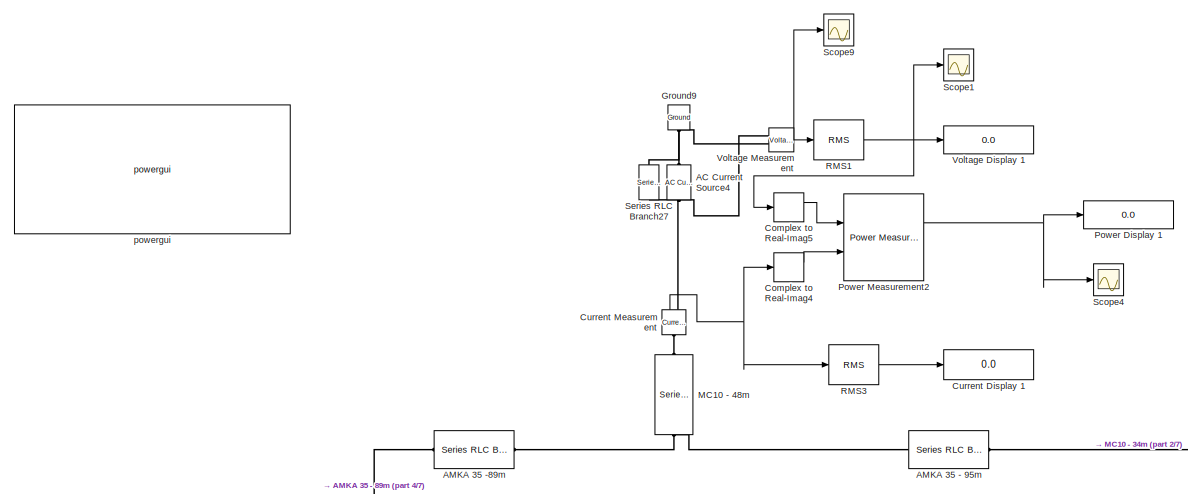
[diagram: root canvas - part 1/7, top center region]
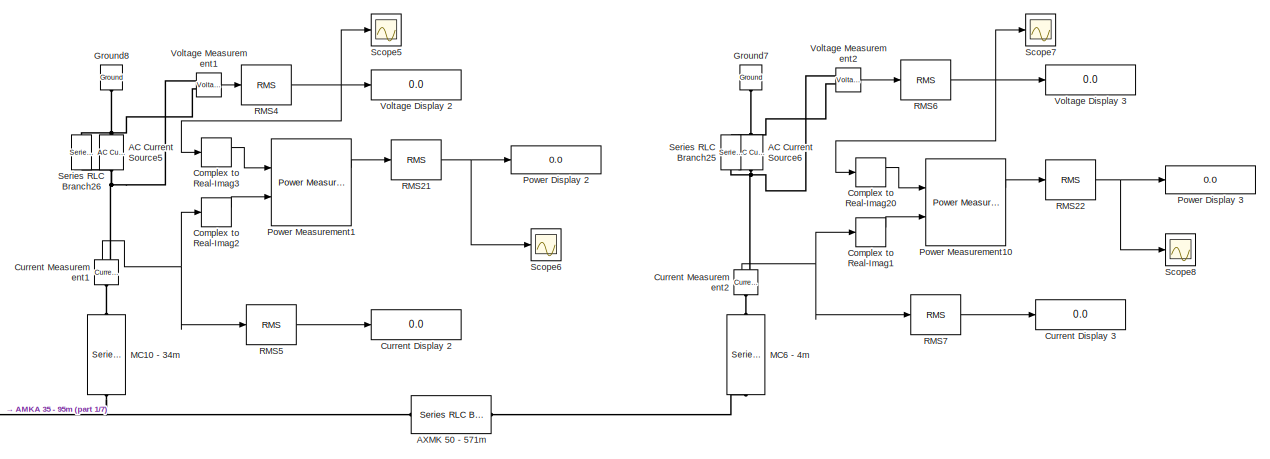
[diagram: root canvas - part 2/7, top right region]
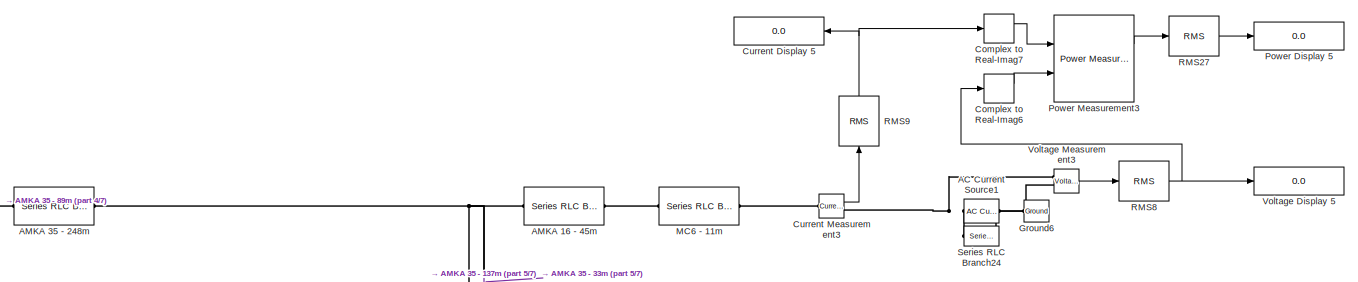
[diagram: root canvas - part 3/7, top center region]
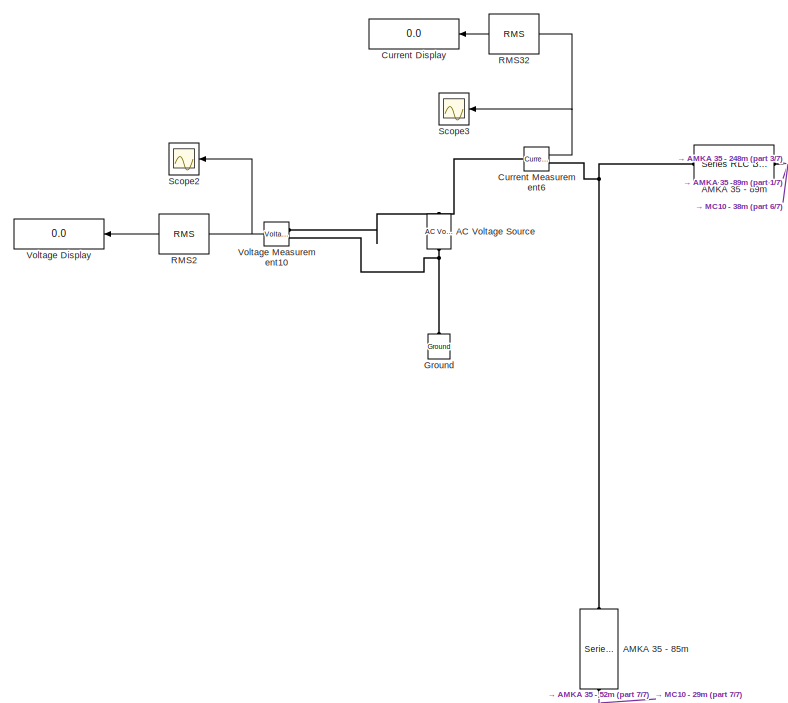
[diagram: root canvas - part 4/7, middle left region]
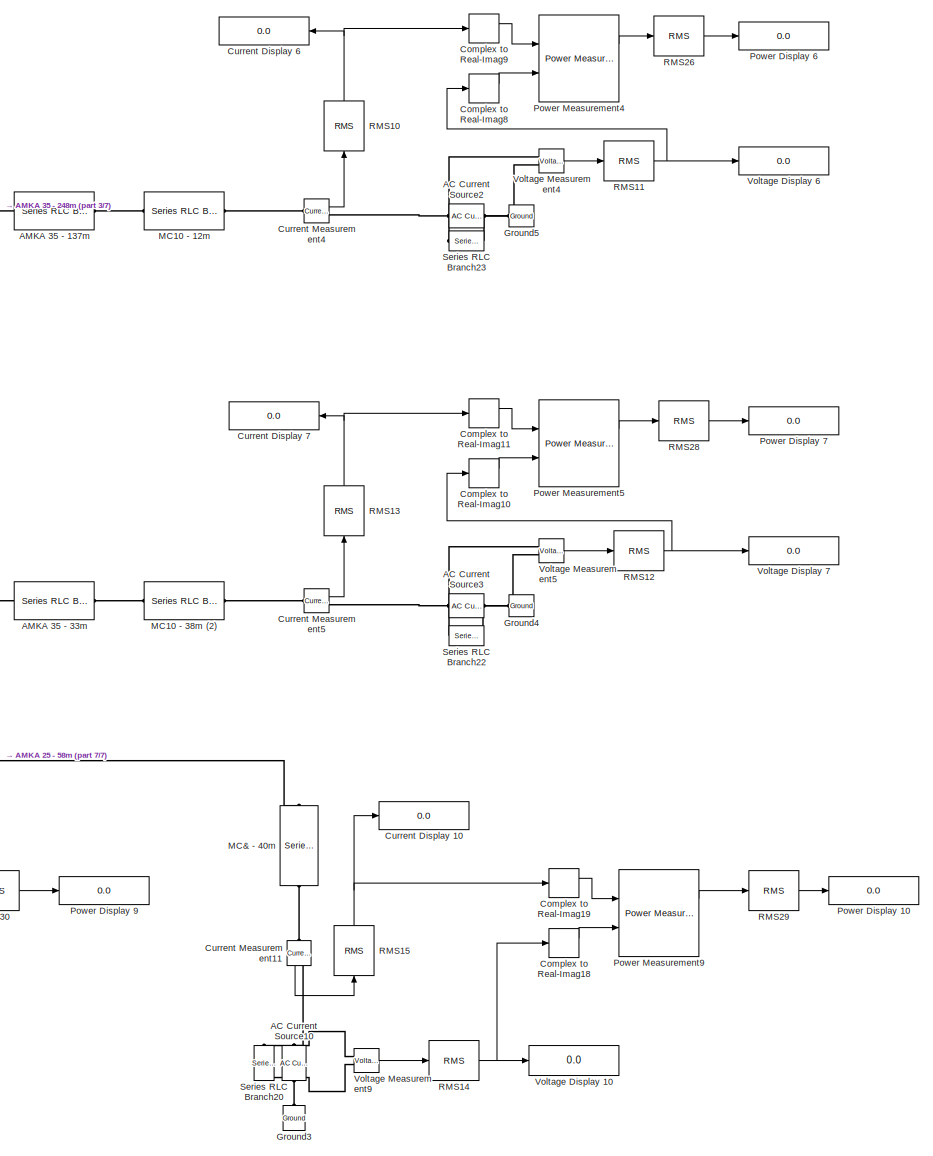
[diagram: root canvas - part 5/7, bottom right region]
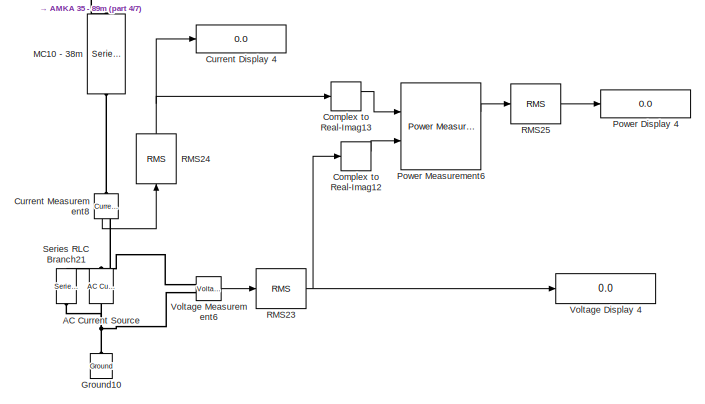
[diagram: root canvas - part 6/7, central region]
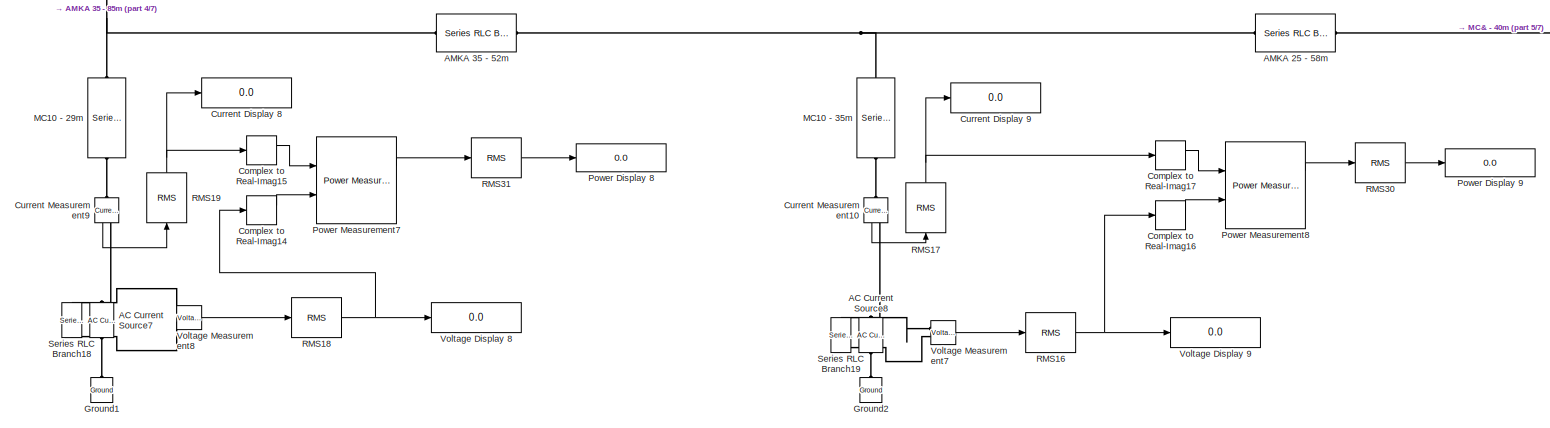
[diagram: root canvas - part 7/7, bottom center region]
MODEL slx_4e1f03ae6e0e
KIND model
CONFIG AbsTol = auto
CONFIG EnableMultiTasking = off
CONFIG FixedStep = auto
CONFIG MaxStep = auto
CONFIG MinStep = auto
CONFIG RelTol = 1e-3
CONFIG SampleTimeConstraint = Unconstrained
CONFIG Solver = VariableStepAuto
CONFIG SolverName = VariableStepAuto
CONFIG StartTime = 0.0
CONFIG StopTime = 2.0
BLOCK [Reference] AC Current Source  REF=powerlib/Electrical
Sources/AC Current Source
  NameLocation = left
  Ports = [0, 0, 0, 0, 0, 1, 1]
  SourceBlock = powerlib/Electrical\nSources/AC Current Source
  SourceProductBaseCode = PS
  SourceType = AC Current Source
BLOCK [Reference] AC Current Source1  REF=powerlib/Electrical
Sources/AC Current Source
  Ports = [0, 0, 0, 0, 0, 1, 1]
  SourceBlock = powerlib/Electrical\nSources/AC Current Source
  SourceProductBaseCode = PS
  SourceType = AC Current Source
BLOCK [Reference] AC Current Source10  REF=powerlib/Electrical
Sources/AC Current Source
  NameLocation = left
  Ports = [0, 0, 0, 0, 0, 1, 1]
  SourceBlock = powerlib/Electrical\nSources/AC Current Source
  SourceProductBaseCode = PS
  SourceType = AC Current Source
BLOCK [Reference] AC Current Source2  REF=powerlib/Electrical
Sources/AC Current Source
  Ports = [0, 0, 0, 0, 0, 1, 1]
  SourceBlock = powerlib/Electrical\nSources/AC Current Source
  SourceProductBaseCode = PS
  SourceType = AC Current Source
BLOCK [Reference] AC Current Source3  REF=powerlib/Electrical
Sources/AC Current Source
  Ports = [0, 0, 0, 0, 0, 1, 1]
  SourceBlock = powerlib/Electrical\nSources/AC Current Source
  SourceProductBaseCode = PS
  SourceType = AC Current Source
BLOCK [Reference] AC Current Source4  REF=powerlib/Electrical
Sources/AC Current Source
  NameLocation = right
  Ports = [0, 0, 0, 0, 0, 1, 1]
  SourceBlock = powerlib/Electrical\nSources/AC Current Source
  SourceProductBaseCode = PS
  SourceType = AC Current Source
BLOCK [Reference] AC Current Source5  REF=powerlib/Electrical
Sources/AC Current Source
  NameLocation = right
  Ports = [0, 0, 0, 0, 0, 1, 1]
  SourceBlock = powerlib/Electrical\nSources/AC Current Source
  SourceProductBaseCode = PS
  SourceType = AC Current Source
BLOCK [Reference] AC Current Source6  REF=powerlib/Electrical
Sources/AC Current Source
  NameLocation = right
  Ports = [0, 0, 0, 0, 0, 1, 1]
  SourceBlock = powerlib/Electrical\nSources/AC Current Source
  SourceProductBaseCode = PS
  SourceType = AC Current Source
BLOCK [Reference] AC Current Source7  REF=powerlib/Electrical
Sources/AC Current Source
  NameLocation = left
  Ports = [0, 0, 0, 0, 0, 1, 1]
  SourceBlock = powerlib/Electrical\nSources/AC Current Source
  SourceProductBaseCode = PS
  SourceType = AC Current Source
BLOCK [Reference] AC Current Source8  REF=powerlib/Electrical
Sources/AC Current Source
  NameLocation = left
  Ports = [0, 0, 0, 0, 0, 1, 1]
  SourceBlock = powerlib/Electrical\nSources/AC Current Source
  SourceProductBaseCode = PS
  SourceType = AC Current Source
BLOCK [Reference] AC Voltage Source  REF=powerlib/Electrical
Sources/AC Voltage Source
  NameLocation = right
  Ports = [0, 0, 0, 0, 0, 1, 1]
  SourceBlock = powerlib/Electrical\nSources/AC Voltage Source
  SourceProductBaseCode = PS
  SourceType = AC Voltage Source
BLOCK [Reference] AMKA 16 - 45m  REF=powerlib/Elements/Series RLC Branch
  Ports = [0, 0, 0, 0, 0, 1, 1]
  SourceBlock = powerlib/Elements/Series RLC Branch
  SourceProductBaseCode = PS
  SourceType = Series RLC Branch
BLOCK [Reference] AMKA 25 - 58m  REF=powerlib/Elements/Series RLC Branch
  Ports = [0, 0, 0, 0, 0, 1, 1]
  SourceBlock = powerlib/Elements/Series RLC Branch
  SourceProductBaseCode = PS
  SourceType = Series RLC Branch
BLOCK [Reference] AMKA 35 - 137m  REF=powerlib/Elements/Series RLC Branch
  Ports = [0, 0, 0, 0, 0, 1, 1]
  SourceBlock = powerlib/Elements/Series RLC Branch
  SourceProductBaseCode = PS
  SourceType = Series RLC Branch
BLOCK [Reference] AMKA 35 - 248m  REF=powerlib/Elements/Series RLC Branch
  Ports = [0, 0, 0, 0, 0, 1, 1]
  SourceBlock = powerlib/Elements/Series RLC Branch
  SourceProductBaseCode = PS
  SourceType = Series RLC Branch
BLOCK [Reference] AMKA 35 - 33m  REF=powerlib/Elements/Series RLC Branch
  Ports = [0, 0, 0, 0, 0, 1, 1]
  SourceBlock = powerlib/Elements/Series RLC Branch
  SourceProductBaseCode = PS
  SourceType = Series RLC Branch
BLOCK [Reference] AMKA 35 - 52m  REF=powerlib/Elements/Series RLC Branch
  Ports = [0, 0, 0, 0, 0, 1, 1]
  SourceBlock = powerlib/Elements/Series RLC Branch
  SourceProductBaseCode = PS
  SourceType = Series RLC Branch
BLOCK [Reference] AMKA 35 - 85m  REF=powerlib/Elements/Series RLC Branch
  NameLocation = left
  Ports = [0, 0, 0, 0, 0, 1, 1]
  SourceBlock = powerlib/Elements/Series RLC Branch
  SourceProductBaseCode = PS
  SourceType = Series RLC Branch
BLOCK [Reference] AMKA 35 - 89m  REF=powerlib/Elements/Series RLC Branch
  Ports = [0, 0, 0, 0, 0, 1, 1]
  SourceBlock = powerlib/Elements/Series RLC Branch
  SourceProductBaseCode = PS
  SourceType = Series RLC Branch
BLOCK [Reference] AMKA 35 - 95m  REF=powerlib/Elements/Series RLC Branch
  Ports = [0, 0, 0, 0, 0, 1, 1]
  SourceBlock = powerlib/Elements/Series RLC Branch
  SourceProductBaseCode = PS
  SourceType = Series RLC Branch
BLOCK [Reference] AMKA 35 -89m  REF=powerlib/Elements/Series RLC Branch
  Ports = [0, 0, 0, 0, 0, 1, 1]
  SourceBlock = powerlib/Elements/Series RLC Branch
  SourceProductBaseCode = PS
  SourceType = Series RLC Branch
BLOCK [Reference] AXMK 50 - 571m  REF=powerlib/Elements/Series RLC Branch
  Ports = [0, 0, 0, 0, 0, 1, 1]
  SourceBlock = powerlib/Elements/Series RLC Branch
  SourceProductBaseCode = PS
  SourceType = Series RLC Branch
BLOCK [ComplexToRealImag] Complex to Real-Imag1
  Ports = [1, 2]
BLOCK [ComplexToRealImag] Complex to Real-Imag10
  Ports = [1, 2]
BLOCK [ComplexToRealImag] Complex to Real-Imag11
  Ports = [1, 2]
BLOCK [ComplexToRealImag] Complex to Real-Imag12
  Ports = [1, 2]
BLOCK [ComplexToRealImag] Complex to Real-Imag13
  Ports = [1, 2]
BLOCK [ComplexToRealImag] Complex to Real-Imag14
  Ports = [1, 2]
BLOCK [ComplexToRealImag] Complex to Real-Imag15
  Ports = [1, 2]
BLOCK [ComplexToRealImag] Complex to Real-Imag16
  Ports = [1, 2]
BLOCK [ComplexToRealImag] Complex to Real-Imag17
  Ports = [1, 2]
BLOCK [ComplexToRealImag] Complex to Real-Imag18
  Ports = [1, 2]
BLOCK [ComplexToRealImag] Complex to Real-Imag19
  Ports = [1, 2]
BLOCK [ComplexToRealImag] Complex to Real-Imag2
  Ports = [1, 2]
BLOCK [ComplexToRealImag] Complex to Real-Imag20
  Ports = [1, 2]
BLOCK [ComplexToRealImag] Complex to Real-Imag3
  Ports = [1, 2]
BLOCK [ComplexToRealImag] Complex to Real-Imag4
  Ports = [1, 2]
BLOCK [ComplexToRealImag] Complex to Real-Imag5
  Ports = [1, 2]
BLOCK [ComplexToRealImag] Complex to Real-Imag6
  Ports = [1, 2]
BLOCK [ComplexToRealImag] Complex to Real-Imag7
  Ports = [1, 2]
BLOCK [ComplexToRealImag] Complex to Real-Imag8
  Ports = [1, 2]
BLOCK [ComplexToRealImag] Complex to Real-Imag9
  Ports = [1, 2]
BLOCK [Display] Current Display
  Decimation = 1
  NameLocation = top
  Ports = [1]
BLOCK [Display] Current Display 1
  Decimation = 1
  Ports = [1]
BLOCK [Display] Current Display 10
  Decimation = 1
  Ports = [1]
BLOCK [Display] Current Display 2
  Decimation = 1
  Ports = [1]
BLOCK [Display] Current Display 3
  Decimation = 1
  Ports = [1]
BLOCK [Display] Current Display 4
  Decimation = 1
  Ports = [1]
BLOCK [Display] Current Display 5
  Decimation = 1
  NameLocation = top
  Ports = [1]
BLOCK [Display] Current Display 6
  Decimation = 1
  NameLocation = top
  Ports = [1]
BLOCK [Display] Current Display 7
  Decimation = 1
  NameLocation = top
  Ports = [1]
BLOCK [Display] Current Display 8
  Decimation = 1
  Ports = [1]
BLOCK [Display] Current Display 9
  Decimation = 1
  Ports = [1]
BLOCK [Reference] Current Measurement  REF=powerlib/Measurements/Current Measurement
  NameLocation = right
  Ports = [0, 1, 0, 0, 0, 1, 1]
  SourceBlock = powerlib/Measurements/Current Measurement
  SourceProductBaseCode = PS
  SourceType = Current Measurement
  UserDataPersistent = on
BLOCK [Reference] Current Measurement1  REF=powerlib/Measurements/Current Measurement
  NameLocation = right
  Ports = [0, 1, 0, 0, 0, 1, 1]
  SourceBlock = powerlib/Measurements/Current Measurement
  SourceProductBaseCode = PS
  SourceType = Current Measurement
  UserDataPersistent = on
BLOCK [Reference] Current Measurement10  REF=powerlib/Measurements/Current Measurement
  NameLocation = left
  Ports = [0, 1, 0, 0, 0, 1, 1]
  SourceBlock = powerlib/Measurements/Current Measurement
  SourceProductBaseCode = PS
  SourceType = Current Measurement
  UserDataPersistent = on
BLOCK [Reference] Current Measurement11  REF=powerlib/Measurements/Current Measurement
  NameLocation = left
  Ports = [0, 1, 0, 0, 0, 1, 1]
  SourceBlock = powerlib/Measurements/Current Measurement
  SourceProductBaseCode = PS
  SourceType = Current Measurement
  UserDataPersistent = on
BLOCK [Reference] Current Measurement2  REF=powerlib/Measurements/Current Measurement
  NameLocation = right
  Ports = [0, 1, 0, 0, 0, 1, 1]
  SourceBlock = powerlib/Measurements/Current Measurement
  SourceProductBaseCode = PS
  SourceType = Current Measurement
  UserDataPersistent = on
BLOCK [Reference] Current Measurement3  REF=powerlib/Measurements/Current Measurement
  Ports = [0, 1, 0, 0, 0, 1, 1]
  SourceBlock = powerlib/Measurements/Current Measurement
  SourceProductBaseCode = PS
  SourceType = Current Measurement
  UserDataPersistent = on
BLOCK [Reference] Current Measurement4  REF=powerlib/Measurements/Current Measurement
  Ports = [0, 1, 0, 0, 0, 1, 1]
  SourceBlock = powerlib/Measurements/Current Measurement
  SourceProductBaseCode = PS
  SourceType = Current Measurement
  UserDataPersistent = on
BLOCK [Reference] Current Measurement5  REF=powerlib/Measurements/Current Measurement
  Ports = [0, 1, 0, 0, 0, 1, 1]
  SourceBlock = powerlib/Measurements/Current Measurement
  SourceProductBaseCode = PS
  SourceType = Current Measurement
  UserDataPersistent = on
BLOCK [Reference] Current Measurement6  REF=powerlib/Measurements/Current Measurement
  Ports = [0, 1, 0, 0, 0, 1, 1]
  SourceBlock = powerlib/Measurements/Current Measurement
  SourceProductBaseCode = PS
  SourceType = Current Measurement
  UserDataPersistent = on
BLOCK [Reference] Current Measurement8  REF=powerlib/Measurements/Current Measurement
  NameLocation = left
  Ports = [0, 1, 0, 0, 0, 1, 1]
  SourceBlock = powerlib/Measurements/Current Measurement
  SourceProductBaseCode = PS
  SourceType = Current Measurement
  UserDataPersistent = on
BLOCK [Reference] Current Measurement9  REF=powerlib/Measurements/Current Measurement
  NameLocation = left
  Ports = [0, 1, 0, 0, 0, 1, 1]
  SourceBlock = powerlib/Measurements/Current Measurement
  SourceProductBaseCode = PS
  SourceType = Current Measurement
  UserDataPersistent = on
BLOCK [Reference] Ground  REF=powerlib/Elements/Ground
  NameLocation = right
  Ports = [0, 0, 0, 0, 0, 1]
  SourceBlock = powerlib/Elements/Ground
  SourceProductBaseCode = PS
  SourceType = Ground
BLOCK [Reference] Ground1  REF=powerlib/Elements/Ground
  NameLocation = right
  Ports = [0, 0, 0, 0, 0, 1]
  SourceBlock = powerlib/Elements/Ground
  SourceProductBaseCode = PS
  SourceType = Ground
BLOCK [Reference] Ground10  REF=powerlib/Elements/Ground
  NameLocation = right
  Ports = [0, 0, 0, 0, 0, 1]
  SourceBlock = powerlib/Elements/Ground
  SourceProductBaseCode = PS
  SourceType = Ground
BLOCK [Reference] Ground2  REF=powerlib/Elements/Ground
  NameLocation = right
  Ports = [0, 0, 0, 0, 0, 1]
  SourceBlock = powerlib/Elements/Ground
  SourceProductBaseCode = PS
  SourceType = Ground
BLOCK [Reference] Ground3  REF=powerlib/Elements/Ground
  NameLocation = right
  Ports = [0, 0, 0, 0, 0, 1]
  SourceBlock = powerlib/Elements/Ground
  SourceProductBaseCode = PS
  SourceType = Ground
BLOCK [Reference] Ground4  REF=powerlib/Elements/Ground
  NameLocation = top
  Ports = [0, 0, 0, 0, 0, 1]
  SourceBlock = powerlib/Elements/Ground
  SourceProductBaseCode = PS
  SourceType = Ground
BLOCK [Reference] Ground5  REF=powerlib/Elements/Ground
  NameLocation = top
  Ports = [0, 0, 0, 0, 0, 1]
  SourceBlock = powerlib/Elements/Ground
  SourceProductBaseCode = PS
  SourceType = Ground
BLOCK [Reference] Ground6  REF=powerlib/Elements/Ground
  NameLocation = top
  Ports = [0, 0, 0, 0, 0, 1]
  SourceBlock = powerlib/Elements/Ground
  SourceProductBaseCode = PS
  SourceType = Ground
BLOCK [Reference] Ground7  REF=powerlib/Elements/Ground
  NameLocation = left
  Ports = [0, 0, 0, 0, 0, 1]
  SourceBlock = powerlib/Elements/Ground
  SourceProductBaseCode = PS
  SourceType = Ground
BLOCK [Reference] Ground8  REF=powerlib/Elements/Ground
  NameLocation = left
  Ports = [0, 0, 0, 0, 0, 1]
  SourceBlock = powerlib/Elements/Ground
  SourceProductBaseCode = PS
  SourceType = Ground
BLOCK [Reference] Ground9  REF=powerlib/Elements/Ground
  NameLocation = left
  Ports = [0, 0, 0, 0, 0, 1]
  SourceBlock = powerlib/Elements/Ground
  SourceProductBaseCode = PS
  SourceType = Ground
BLOCK [Reference] MC& - 40m  REF=powerlib/Elements/Series RLC Branch
  NameLocation = left
  Ports = [0, 0, 0, 0, 0, 1, 1]
  SourceBlock = powerlib/Elements/Series RLC Branch
  SourceProductBaseCode = PS
  SourceType = Series RLC Branch
BLOCK [Reference] MC10 - 12m  REF=powerlib/Elements/Series RLC Branch
  Ports = [0, 0, 0, 0, 0, 1, 1]
  SourceBlock = powerlib/Elements/Series RLC Branch
  SourceProductBaseCode = PS
  SourceType = Series RLC Branch
BLOCK [Reference] MC10 - 29m  REF=powerlib/Elements/Series RLC Branch
  NameLocation = left
  Ports = [0, 0, 0, 0, 0, 1, 1]
  SourceBlock = powerlib/Elements/Series RLC Branch
  SourceProductBaseCode = PS
  SourceType = Series RLC Branch
BLOCK [Reference] MC10 - 34m  REF=powerlib/Elements/Series RLC Branch
  NameLocation = right
  Ports = [0, 0, 0, 0, 0, 1, 1]
  SourceBlock = powerlib/Elements/Series RLC Branch
  SourceProductBaseCode = PS
  SourceType = Series RLC Branch
BLOCK [Reference] MC10 - 35m  REF=powerlib/Elements/Series RLC Branch
  NameLocation = left
  Ports = [0, 0, 0, 0, 0, 1, 1]
  SourceBlock = powerlib/Elements/Series RLC Branch
  SourceProductBaseCode = PS
  SourceType = Series RLC Branch
BLOCK [Reference] MC10 - 38m  REF=powerlib/Elements/Series RLC Branch
  NameLocation = left
  Ports = [0, 0, 0, 0, 0, 1, 1]
  SourceBlock = powerlib/Elements/Series RLC Branch
  SourceProductBaseCode = PS
  SourceType = Series RLC Branch
BLOCK [Reference] MC10 - 38m (2)   REF=powerlib/Elements/Series RLC Branch
  Ports = [0, 0, 0, 0, 0, 1, 1]
  SourceBlock = powerlib/Elements/Series RLC Branch
  SourceProductBaseCode = PS
  SourceType = Series RLC Branch
BLOCK [Reference] MC10 - 48m  REF=powerlib/Elements/Series RLC Branch
  NameLocation = right
  Ports = [0, 0, 0, 0, 0, 1, 1]
  SourceBlock = powerlib/Elements/Series RLC Branch
  SourceProductBaseCode = PS
  SourceType = Series RLC Branch
BLOCK [Reference] MC6 - 11m  REF=powerlib/Elements/Series RLC Branch
  Ports = [0, 0, 0, 0, 0, 1, 1]
  SourceBlock = powerlib/Elements/Series RLC Branch
  SourceProductBaseCode = PS
  SourceType = Series RLC Branch
BLOCK [Reference] MC6 - 4m  REF=powerlib/Elements/Series RLC Branch
  NameLocation = right
  Ports = [0, 0, 0, 0, 0, 1, 1]
  SourceBlock = powerlib/Elements/Series RLC Branch
  SourceProductBaseCode = PS
  SourceType = Series RLC Branch
BLOCK [Display] Power Display 1
  Decimation = 1
  Ports = [1]
BLOCK [Display] Power Display 10
  Decimation = 1
  Ports = [1]
BLOCK [Display] Power Display 2
  Decimation = 1
  Ports = [1]
BLOCK [Display] Power Display 3
  Decimation = 1
  Ports = [1]
BLOCK [Display] Power Display 4
  Decimation = 1
  Ports = [1]
BLOCK [Display] Power Display 5
  Decimation = 1
  Ports = [1]
BLOCK [Display] Power Display 6
  Decimation = 1
  Ports = [1]
BLOCK [Display] Power Display 7
  Decimation = 1
  Ports = [1]
BLOCK [Display] Power Display 8
  Decimation = 1
  Ports = [1]
BLOCK [Display] Power Display 9
  Decimation = 1
  Ports = [1]
BLOCK [Reference] Power Measurement1  REF=eePowerMeasurement/Power
Measurement
  Ports = [2, 2]
  SourceBlock = eePowerMeasurement/Power\nMeasurement
  SourceProductBaseCode = PS
  SourceType = Power Measurement
BLOCK [Reference] Power Measurement10  REF=eePowerMeasurement/Power
Measurement
  Ports = [2, 2]
  SourceBlock = eePowerMeasurement/Power\nMeasurement
  SourceProductBaseCode = PS
  SourceType = Power Measurement
BLOCK [Reference] Power Measurement2  REF=eePowerMeasurement/Power
Measurement
  Ports = [2, 2]
  SourceBlock = eePowerMeasurement/Power\nMeasurement
  SourceProductBaseCode = PS
  SourceType = Power Measurement
BLOCK [Reference] Power Measurement3  REF=eePowerMeasurement/Power
Measurement
  Ports = [2, 2]
  SourceBlock = eePowerMeasurement/Power\nMeasurement
  SourceProductBaseCode = PS
  SourceType = Power Measurement
BLOCK [Reference] Power Measurement4  REF=eePowerMeasurement/Power
Measurement
  Ports = [2, 2]
  SourceBlock = eePowerMeasurement/Power\nMeasurement
  SourceProductBaseCode = PS
  SourceType = Power Measurement
BLOCK [Reference] Power Measurement5  REF=eePowerMeasurement/Power
Measurement
  Ports = [2, 2]
  SourceBlock = eePowerMeasurement/Power\nMeasurement
  SourceProductBaseCode = PS
  SourceType = Power Measurement
BLOCK [Reference] Power Measurement6  REF=eePowerMeasurement/Power
Measurement
  Ports = [2, 2]
  SourceBlock = eePowerMeasurement/Power\nMeasurement
  SourceProductBaseCode = PS
  SourceType = Power Measurement
BLOCK [Reference] Power Measurement7  REF=eePowerMeasurement/Power
Measurement
  Ports = [2, 2]
  SourceBlock = eePowerMeasurement/Power\nMeasurement
  SourceProductBaseCode = PS
  SourceType = Power Measurement
BLOCK [Reference] Power Measurement8  REF=eePowerMeasurement/Power
Measurement
  Ports = [2, 2]
  SourceBlock = eePowerMeasurement/Power\nMeasurement
  SourceProductBaseCode = PS
  SourceType = Power Measurement
BLOCK [Reference] Power Measurement9  REF=eePowerMeasurement/Power
Measurement
  Ports = [2, 2]
  SourceBlock = eePowerMeasurement/Power\nMeasurement
  SourceProductBaseCode = PS
  SourceType = Power Measurement
BLOCK [Reference] RMS1  REF=powerlib_meascontrol/Measurements/RMS
  Ports = [1, 1]
  SourceBlock = powerlib_meascontrol/Measurements/RMS
  SourceProductBaseCode = PS
  SourceType = RMS
BLOCK [Reference] RMS10  REF=powerlib_meascontrol/Measurements/RMS
  NameLocation = right
  Ports = [1, 1]
  SourceBlock = powerlib_meascontrol/Measurements/RMS
  SourceProductBaseCode = PS
  SourceType = RMS
BLOCK [Reference] RMS11  REF=powerlib_meascontrol/Measurements/RMS
  Ports = [1, 1]
  SourceBlock = powerlib_meascontrol/Measurements/RMS
  SourceProductBaseCode = PS
  SourceType = RMS
BLOCK [Reference] RMS12  REF=powerlib_meascontrol/Measurements/RMS
  Ports = [1, 1]
  SourceBlock = powerlib_meascontrol/Measurements/RMS
  SourceProductBaseCode = PS
  SourceType = RMS
BLOCK [Reference] RMS13  REF=powerlib_meascontrol/Measurements/RMS
  NameLocation = right
  Ports = [1, 1]
  SourceBlock = powerlib_meascontrol/Measurements/RMS
  SourceProductBaseCode = PS
  SourceType = RMS
BLOCK [Reference] RMS14  REF=powerlib_meascontrol/Measurements/RMS
  Ports = [1, 1]
  SourceBlock = powerlib_meascontrol/Measurements/RMS
  SourceProductBaseCode = PS
  SourceType = RMS
BLOCK [Reference] RMS15  REF=powerlib_meascontrol/Measurements/RMS
  NameLocation = right
  Ports = [1, 1]
  SourceBlock = powerlib_meascontrol/Measurements/RMS
  SourceProductBaseCode = PS
  SourceType = RMS
BLOCK [Reference] RMS16  REF=powerlib_meascontrol/Measurements/RMS
  Ports = [1, 1]
  SourceBlock = powerlib_meascontrol/Measurements/RMS
  SourceProductBaseCode = PS
  SourceType = RMS
BLOCK [Reference] RMS17  REF=powerlib_meascontrol/Measurements/RMS
  NameLocation = right
  Ports = [1, 1]
  SourceBlock = powerlib_meascontrol/Measurements/RMS
  SourceProductBaseCode = PS
  SourceType = RMS
BLOCK [Reference] RMS18  REF=powerlib_meascontrol/Measurements/RMS
  Ports = [1, 1]
  SourceBlock = powerlib_meascontrol/Measurements/RMS
  SourceProductBaseCode = PS
  SourceType = RMS
BLOCK [Reference] RMS19  REF=powerlib_meascontrol/Measurements/RMS
  NameLocation = right
  Ports = [1, 1]
  SourceBlock = powerlib_meascontrol/Measurements/RMS
  SourceProductBaseCode = PS
  SourceType = RMS
BLOCK [Reference] RMS2  REF=powerlib_meascontrol/Measurements/RMS
  NameLocation = top
  Ports = [1, 1]
  SourceBlock = powerlib_meascontrol/Measurements/RMS
  SourceProductBaseCode = PS
  SourceType = RMS
BLOCK [Reference] RMS21  REF=powerlib_meascontrol/Measurements/RMS
  Ports = [1, 1]
  SourceBlock = powerlib_meascontrol/Measurements/RMS
  SourceProductBaseCode = PS
  SourceType = RMS
BLOCK [Reference] RMS22  REF=powerlib_meascontrol/Measurements/RMS
  Ports = [1, 1]
  SourceBlock = powerlib_meascontrol/Measurements/RMS
  SourceProductBaseCode = PS
  SourceType = RMS
BLOCK [Reference] RMS23  REF=powerlib_meascontrol/Measurements/RMS
  Ports = [1, 1]
  SourceBlock = powerlib_meascontrol/Measurements/RMS
  SourceProductBaseCode = PS
  SourceType = RMS
BLOCK [Reference] RMS24  REF=powerlib_meascontrol/Measurements/RMS
  NameLocation = right
  Ports = [1, 1]
  SourceBlock = powerlib_meascontrol/Measurements/RMS
  SourceProductBaseCode = PS
  SourceType = RMS
BLOCK [Reference] RMS25  REF=powerlib_meascontrol/Measurements/RMS
  Ports = [1, 1]
  SourceBlock = powerlib_meascontrol/Measurements/RMS
  SourceProductBaseCode = PS
  SourceType = RMS
BLOCK [Reference] RMS26  REF=powerlib_meascontrol/Measurements/RMS
  Ports = [1, 1]
  SourceBlock = powerlib_meascontrol/Measurements/RMS
  SourceProductBaseCode = PS
  SourceType = RMS
BLOCK [Reference] RMS27  REF=powerlib_meascontrol/Measurements/RMS
  Ports = [1, 1]
  SourceBlock = powerlib_meascontrol/Measurements/RMS
  SourceProductBaseCode = PS
  SourceType = RMS
BLOCK [Reference] RMS28  REF=powerlib_meascontrol/Measurements/RMS
  Ports = [1, 1]
  SourceBlock = powerlib_meascontrol/Measurements/RMS
  SourceProductBaseCode = PS
  SourceType = RMS
BLOCK [Reference] RMS29  REF=powerlib_meascontrol/Measurements/RMS
  Ports = [1, 1]
  SourceBlock = powerlib_meascontrol/Measurements/RMS
  SourceProductBaseCode = PS
  SourceType = RMS
BLOCK [Reference] RMS3  REF=powerlib_meascontrol/Measurements/RMS
  Ports = [1, 1]
  SourceBlock = powerlib_meascontrol/Measurements/RMS
  SourceProductBaseCode = PS
  SourceType = RMS
BLOCK [Reference] RMS30  REF=powerlib_meascontrol/Measurements/RMS
  Ports = [1, 1]
  SourceBlock = powerlib_meascontrol/Measurements/RMS
  SourceProductBaseCode = PS
  SourceType = RMS
BLOCK [Reference] RMS31  REF=powerlib_meascontrol/Measurements/RMS
  Ports = [1, 1]
  SourceBlock = powerlib_meascontrol/Measurements/RMS
  SourceProductBaseCode = PS
  SourceType = RMS
BLOCK [Reference] RMS32  REF=powerlib_meascontrol/Measurements/RMS
  NameLocation = top
  Ports = [1, 1]
  SourceBlock = powerlib_meascontrol/Measurements/RMS
  SourceProductBaseCode = PS
  SourceType = RMS
BLOCK [Reference] RMS4  REF=powerlib_meascontrol/Measurements/RMS
  Ports = [1, 1]
  SourceBlock = powerlib_meascontrol/Measurements/RMS
  SourceProductBaseCode = PS
  SourceType = RMS
BLOCK [Reference] RMS5  REF=powerlib_meascontrol/Measurements/RMS
  Ports = [1, 1]
  SourceBlock = powerlib_meascontrol/Measurements/RMS
  SourceProductBaseCode = PS
  SourceType = RMS
BLOCK [Reference] RMS6  REF=powerlib_meascontrol/Measurements/RMS
  Ports = [1, 1]
  SourceBlock = powerlib_meascontrol/Measurements/RMS
  SourceProductBaseCode = PS
  SourceType = RMS
BLOCK [Reference] RMS7  REF=powerlib_meascontrol/Measurements/RMS
  Ports = [1, 1]
  SourceBlock = powerlib_meascontrol/Measurements/RMS
  SourceProductBaseCode = PS
  SourceType = RMS
BLOCK [Reference] RMS8  REF=powerlib_meascontrol/Measurements/RMS
  Ports = [1, 1]
  SourceBlock = powerlib_meascontrol/Measurements/RMS
  SourceProductBaseCode = PS
  SourceType = RMS
BLOCK [Reference] RMS9  REF=powerlib_meascontrol/Measurements/RMS
  NameLocation = right
  Ports = [1, 1]
  SourceBlock = powerlib_meascontrol/Measurements/RMS
  SourceProductBaseCode = PS
  SourceType = RMS
BLOCK [Scope] Scope1
  Floating = off
  NumInputPorts = 1
  Ports = [1]
  ScopeSpecificationString = Simulink.scopes.TimeScopeBlockCfg('CurrentConfiguration', extmgr.ConfigurationSet(extmgr.Configuration('Core','General UI',true),extmgr.Configuration('Core','Source UI',true),extmgr.Configuration('Sources','WiredSimulink',true,'DataLoggingVariableName','ScopeData1'),extmgr.Configuration('Visuals','Time Domain',true),extmgr.Configuration('Tools','Plot Navigation',true),extmgr.Configuration('Tools',...<+40ch>
BLOCK [Scope] Scope2
  Floating = off
  NameLocation = top
  NumInputPorts = 1
  Ports = [1]
  ScopeSpecificationString = Simulink.scopes.TimeScopeBlockCfg('CurrentConfiguration', extmgr.ConfigurationSet(extmgr.Configuration('Core','General UI',true),extmgr.Configuration('Core','Source UI',true),extmgr.Configuration('Sources','WiredSimulink',true,'DataLoggingVariableName','ScopeData5'),extmgr.Configuration('Visuals','Time Domain',true,'SerializedDisplays',{struct('MinYLimReal','-225.29754','MaxYLimReal','-31.13136','...<+1468ch>
BLOCK [Scope] Scope3
  Floating = off
  NameLocation = top
  NumInputPorts = 1
  Ports = [1]
  ScopeSpecificationString = Simulink.scopes.TimeScopeBlockCfg('CurrentConfiguration', extmgr.ConfigurationSet(extmgr.Configuration('Core','General UI',true),extmgr.Configuration('Core','Source UI',true),extmgr.Configuration('Sources','WiredSimulink',true,'DataLoggingVariableName','ScopeData3'),extmgr.Configuration('Visuals','Time Domain',true,'SerializedDisplays',{struct('MinYLimReal','-65.08754','MaxYLimReal','65.08754','YL...<+1466ch>
BLOCK [Scope] Scope4
  Floating = off
  NumInputPorts = 1
  Ports = [1]
  ScopeSpecificationString = Simulink.scopes.TimeScopeBlockCfg('CurrentConfiguration', extmgr.ConfigurationSet(extmgr.Configuration('Core','General UI',true),extmgr.Configuration('Core','Source UI',true),extmgr.Configuration('Sources','WiredSimulink',true,'DataLoggingVariableName','ScopeData4'),extmgr.Configuration('Visuals','Time Domain',true,'SerializedDisplays',{struct('MinYLimReal','-402.00955','MaxYLimReal','402.00957','...<+1448ch>
BLOCK [Scope] Scope5
  Floating = off
  NumInputPorts = 1
  Ports = [1]
  ScopeSpecificationString = Simulink.scopes.TimeScopeBlockCfg('CurrentConfiguration', extmgr.ConfigurationSet(extmgr.Configuration('Core','General UI',true),extmgr.Configuration('Core','Source UI',true),extmgr.Configuration('Sources','WiredSimulink',true,'DataLoggingVariableName','ScopeData1'),extmgr.Configuration('Visuals','Time Domain',true),extmgr.Configuration('Tools','Plot Navigation',true),extmgr.Configuration('Tools',...<+40ch>
BLOCK [Scope] Scope6
  Floating = off
  NumInputPorts = 1
  Ports = [1]
  ScopeSpecificationString = Simulink.scopes.TimeScopeBlockCfg('CurrentConfiguration', extmgr.ConfigurationSet(extmgr.Configuration('Core','General UI',true),extmgr.Configuration('Core','Source UI',true),extmgr.Configuration('Sources','WiredSimulink',true,'DataLoggingVariableName','ScopeData2'),extmgr.Configuration('Visuals','Time Domain',true,'SerializedDisplays',{struct('MinYLimReal','-402.00955','MaxYLimReal','402.00957','...<+1448ch>
BLOCK [Scope] Scope7
  Floating = off
  NumInputPorts = 1
  Ports = [1]
  ScopeSpecificationString = Simulink.scopes.TimeScopeBlockCfg('CurrentConfiguration', extmgr.ConfigurationSet(extmgr.Configuration('Core','General UI',true),extmgr.Configuration('Core','Source UI',true),extmgr.Configuration('Sources','WiredSimulink',true,'DataLoggingVariableName','ScopeData3'),extmgr.Configuration('Visuals','Time Domain',true),extmgr.Configuration('Tools','Plot Navigation',true),extmgr.Configuration('Tools',...<+40ch>
BLOCK [Scope] Scope8
  Floating = off
  NumInputPorts = 1
  Ports = [1]
  ScopeSpecificationString = Simulink.scopes.TimeScopeBlockCfg('CurrentConfiguration', extmgr.ConfigurationSet(extmgr.Configuration('Core','General UI',true),extmgr.Configuration('Core','Source UI',true),extmgr.Configuration('Sources','WiredSimulink',true,'DataLoggingVariableName','ScopeData4'),extmgr.Configuration('Visuals','Time Domain',true,'SerializedDisplays',{struct('MinYLimReal','-402.00955','MaxYLimReal','402.00957','...<+1448ch>
BLOCK [Scope] Scope9
  Floating = off
  NumInputPorts = 1
  Ports = [1]
  ScopeSpecificationString = Simulink.scopes.TimeScopeBlockCfg('CurrentConfiguration', extmgr.ConfigurationSet(extmgr.Configuration('Core','General UI',true),extmgr.Configuration('Core','Source UI',true),extmgr.Configuration('Sources','WiredSimulink',true,'DataLoggingVariableName','ScopeData1'),extmgr.Configuration('Visuals','Time Domain',true,'SerializedDisplays',{struct('MinYLimReal','-332.50493','MaxYLimReal','-276.0578','...<+1441ch>
BLOCK [Reference] Series RLC Branch18  REF=powerlib/Elements/Series RLC Branch
  NameLocation = left
  Ports = [0, 0, 0, 0, 0, 1, 1]
  SourceBlock = powerlib/Elements/Series RLC Branch
  SourceProductBaseCode = PS
  SourceType = Series RLC Branch
BLOCK [Reference] Series RLC Branch19  REF=powerlib/Elements/Series RLC Branch
  NameLocation = left
  Ports = [0, 0, 0, 0, 0, 1, 1]
  SourceBlock = powerlib/Elements/Series RLC Branch
  SourceProductBaseCode = PS
  SourceType = Series RLC Branch
BLOCK [Reference] Series RLC Branch20  REF=powerlib/Elements/Series RLC Branch
  NameLocation = left
  Ports = [0, 0, 0, 0, 0, 1, 1]
  SourceBlock = powerlib/Elements/Series RLC Branch
  SourceProductBaseCode = PS
  SourceType = Series RLC Branch
BLOCK [Reference] Series RLC Branch21  REF=powerlib/Elements/Series RLC Branch
  NameLocation = left
  Ports = [0, 0, 0, 0, 0, 1, 1]
  SourceBlock = powerlib/Elements/Series RLC Branch
  SourceProductBaseCode = PS
  SourceType = Series RLC Branch
BLOCK [Reference] Series RLC Branch22  REF=powerlib/Elements/Series RLC Branch
  Ports = [0, 0, 0, 0, 0, 1, 1]
  SourceBlock = powerlib/Elements/Series RLC Branch
  SourceProductBaseCode = PS
  SourceType = Series RLC Branch
BLOCK [Reference] Series RLC Branch23  REF=powerlib/Elements/Series RLC Branch
  Ports = [0, 0, 0, 0, 0, 1, 1]
  SourceBlock = powerlib/Elements/Series RLC Branch
  SourceProductBaseCode = PS
  SourceType = Series RLC Branch
BLOCK [Reference] Series RLC Branch24  REF=powerlib/Elements/Series RLC Branch
  Ports = [0, 0, 0, 0, 0, 1, 1]
  SourceBlock = powerlib/Elements/Series RLC Branch
  SourceProductBaseCode = PS
  SourceType = Series RLC Branch
BLOCK [Reference] Series RLC Branch25  REF=powerlib/Elements/Series RLC Branch
  NameLocation = right
  Ports = [0, 0, 0, 0, 0, 1, 1]
  SourceBlock = powerlib/Elements/Series RLC Branch
  SourceProductBaseCode = PS
  SourceType = Series RLC Branch
BLOCK [Reference] Series RLC Branch26  REF=powerlib/Elements/Series RLC Branch
  NameLocation = left
  Ports = [0, 0, 0, 0, 0, 1, 1]
  SourceBlock = powerlib/Elements/Series RLC Branch
  SourceProductBaseCode = PS
  SourceType = Series RLC Branch
BLOCK [Reference] Series RLC Branch27  REF=powerlib/Elements/Series RLC Branch
  NameLocation = left
  Ports = [0, 0, 0, 0, 0, 1, 1]
  SourceBlock = powerlib/Elements/Series RLC Branch
  SourceProductBaseCode = PS
  SourceType = Series RLC Branch
BLOCK [Display] Voltage Display
  Decimation = 1
  NameLocation = top
  Ports = [1]
BLOCK [Display] Voltage Display 1
  Decimation = 1
  Ports = [1]
BLOCK [Display] Voltage Display 10
  Decimation = 1
  Ports = [1]
BLOCK [Display] Voltage Display 2
  Decimation = 1
  Ports = [1]
BLOCK [Display] Voltage Display 3
  Decimation = 1
  Ports = [1]
BLOCK [Display] Voltage Display 4
  Decimation = 1
  Ports = [1]
BLOCK [Display] Voltage Display 5
  Decimation = 1
  Ports = [1]
BLOCK [Display] Voltage Display 6
  Decimation = 1
  Ports = [1]
BLOCK [Display] Voltage Display 7
  Decimation = 1
  Ports = [1]
BLOCK [Display] Voltage Display 8
  Decimation = 1
  Ports = [1]
BLOCK [Display] Voltage Display 9
  Decimation = 1
  Ports = [1]
BLOCK [Reference] Voltage Measurement  REF=powerlib/Measurements/Voltage Measurement
  Ports = [0, 1, 0, 0, 0, 2]
  SourceBlock = powerlib/Measurements/Voltage Measurement
  SourceProductBaseCode = PS
  SourceType = Voltage Measurement
  UserDataPersistent = on
BLOCK [Reference] Voltage Measurement1  REF=powerlib/Measurements/Voltage Measurement
  Ports = [0, 1, 0, 0, 0, 2]
  SourceBlock = powerlib/Measurements/Voltage Measurement
  SourceProductBaseCode = PS
  SourceType = Voltage Measurement
  UserDataPersistent = on
BLOCK [Reference] Voltage Measurement10  REF=powerlib/Measurements/Voltage Measurement
  NameLocation = top
  Ports = [0, 1, 0, 0, 0, 2]
  SourceBlock = powerlib/Measurements/Voltage Measurement
  SourceProductBaseCode = PS
  SourceType = Voltage Measurement
  UserDataPersistent = on
BLOCK [Reference] Voltage Measurement2  REF=powerlib/Measurements/Voltage Measurement
  Ports = [0, 1, 0, 0, 0, 2]
  SourceBlock = powerlib/Measurements/Voltage Measurement
  SourceProductBaseCode = PS
  SourceType = Voltage Measurement
  UserDataPersistent = on
BLOCK [Reference] Voltage Measurement3  REF=powerlib/Measurements/Voltage Measurement
  Ports = [0, 1, 0, 0, 0, 2]
  SourceBlock = powerlib/Measurements/Voltage Measurement
  SourceProductBaseCode = PS
  SourceType = Voltage Measurement
  UserDataPersistent = on
BLOCK [Reference] Voltage Measurement4  REF=powerlib/Measurements/Voltage Measurement
  Ports = [0, 1, 0, 0, 0, 2]
  SourceBlock = powerlib/Measurements/Voltage Measurement
  SourceProductBaseCode = PS
  SourceType = Voltage Measurement
  UserDataPersistent = on
BLOCK [Reference] Voltage Measurement5  REF=powerlib/Measurements/Voltage Measurement
  Ports = [0, 1, 0, 0, 0, 2]
  SourceBlock = powerlib/Measurements/Voltage Measurement
  SourceProductBaseCode = PS
  SourceType = Voltage Measurement
  UserDataPersistent = on
BLOCK [Reference] Voltage Measurement6  REF=powerlib/Measurements/Voltage Measurement
  Ports = [0, 1, 0, 0, 0, 2]
  SourceBlock = powerlib/Measurements/Voltage Measurement
  SourceProductBaseCode = PS
  SourceType = Voltage Measurement
  UserDataPersistent = on
BLOCK [Reference] Voltage Measurement7  REF=powerlib/Measurements/Voltage Measurement
  Ports = [0, 1, 0, 0, 0, 2]
  SourceBlock = powerlib/Measurements/Voltage Measurement
  SourceProductBaseCode = PS
  SourceType = Voltage Measurement
  UserDataPersistent = on
BLOCK [Reference] Voltage Measurement8  REF=powerlib/Measurements/Voltage Measurement
  Ports = [0, 1, 0, 0, 0, 2]
  SourceBlock = powerlib/Measurements/Voltage Measurement
  SourceProductBaseCode = PS
  SourceType = Voltage Measurement
  UserDataPersistent = on
BLOCK [Reference] Voltage Measurement9  REF=powerlib/Measurements/Voltage Measurement
  Ports = [0, 1, 0, 0, 0, 2]
  SourceBlock = powerlib/Measurements/Voltage Measurement
  SourceProductBaseCode = PS
  SourceType = Voltage Measurement
  UserDataPersistent = on
BLOCK [Reference] powergui  REF=powerlib/powergui
  Ports = []
  Priority = 1
  SourceBlock = powerlib/powergui
  SourceProductBaseCode = PS
  SourceType = PSB option menu block
LINE Complex to Real-Imag10:1 -> Power Measurement5:2
LINE Complex to Real-Imag11:1 -> Power Measurement5:1
LINE Complex to Real-Imag12:1 -> Power Measurement6:2
LINE Complex to Real-Imag13:1 -> Power Measurement6:1
LINE Complex to Real-Imag14:1 -> Power Measurement7:2
LINE Complex to Real-Imag15:1 -> Power Measurement7:1
LINE Complex to Real-Imag16:1 -> Power Measurement8:2
LINE Complex to Real-Imag17:1 -> Power Measurement8:1
LINE Complex to Real-Imag18:1 -> Power Measurement9:2
LINE Complex to Real-Imag19:1 -> Power Measurement9:1
LINE Complex to Real-Imag1:1 -> Power Measurement10:2
LINE Complex to Real-Imag20:1 -> Power Measurement10:1
LINE Complex to Real-Imag2:1 -> Power Measurement1:2
LINE Complex to Real-Imag3:1 -> Power Measurement1:1
LINE Complex to Real-Imag4:1 -> Power Measurement2:2
LINE Complex to Real-Imag5:1 -> Power Measurement2:1
LINE Complex to Real-Imag6:1 -> Power Measurement3:2
LINE Complex to Real-Imag7:1 -> Power Measurement3:1
LINE Complex to Real-Imag8:1 -> Power Measurement4:2
LINE Complex to Real-Imag9:1 -> Power Measurement4:1
LINE Current Measurement10:1 -> RMS17:1
LINE Current Measurement11:1 -> RMS15:1
NET Current Measurement1:1 -> Complex to Real-Imag2:1, RMS5:1
NET Current Measurement2:1 -> Complex to Real-Imag1:1, RMS7:1
LINE Current Measurement3:1 -> RMS9:1
LINE Current Measurement4:1 -> RMS10:1
LINE Current Measurement5:1 -> RMS13:1
NET Current Measurement6:1 -> RMS32:1, Scope3:1
LINE Current Measurement8:1 -> RMS24:1
LINE Current Measurement9:1 -> RMS19:1
NET Current Measurement:1 -> Complex to Real-Imag4:1, RMS3:1
LINE Power Measurement10:1 -> RMS22:1
LINE Power Measurement1:1 -> RMS21:1
NET Power Measurement2:1 -> Power Display 1:1, Scope4:1
LINE Power Measurement3:1 -> RMS27:1
LINE Power Measurement4:1 -> RMS26:1
LINE Power Measurement5:1 -> RMS28:1
LINE Power Measurement6:1 -> RMS25:1
LINE Power Measurement7:1 -> RMS31:1
LINE Power Measurement8:1 -> RMS30:1
LINE Power Measurement9:1 -> RMS29:1
NET RMS10:1 -> Complex to Real-Imag9:1, Current Display 6:1
NET RMS11:1 -> Complex to Real-Imag8:1, Voltage Display 6:1
NET RMS12:1 -> Complex to Real-Imag10:1, Voltage Display 7:1
NET RMS13:1 -> Complex to Real-Imag11:1, Current Display 7:1
NET RMS14:1 -> Complex to Real-Imag18:1, Voltage Display 10:1
NET RMS15:1 -> Complex to Real-Imag19:1, Current Display 10:1
NET RMS16:1 -> Complex to Real-Imag16:1, Voltage Display 9:1
NET RMS17:1 -> Complex to Real-Imag17:1, Current Display 9:1
NET RMS18:1 -> Complex to Real-Imag14:1, Voltage Display 8:1
NET RMS19:1 -> Complex to Real-Imag15:1, Current Display 8:1
NET RMS1:1 -> Complex to Real-Imag5:1, Scope1:1, Voltage Display 1:1
NET RMS21:1 -> Power Display 2:1, Scope6:1
NET RMS22:1 -> Power Display 3:1, Scope8:1
NET RMS23:1 -> Complex to Real-Imag12:1, Voltage Display 4:1
NET RMS24:1 -> Complex to Real-Imag13:1, Current Display 4:1
LINE RMS25:1 -> Power Display 4:1
LINE RMS26:1 -> Power Display 6:1
LINE RMS27:1 -> Power Display 5:1
LINE RMS28:1 -> Power Display 7:1
LINE RMS29:1 -> Power Display 10:1
LINE RMS2:1 -> Voltage Display:1
LINE RMS30:1 -> Power Display 9:1
LINE RMS31:1 -> Power Display 8:1
LINE RMS32:1 -> Current Display:1
LINE RMS3:1 -> Current Display 1:1
NET RMS4:1 -> Complex to Real-Imag3:1, Scope5:1, Voltage Display 2:1
LINE RMS5:1 -> Current Display 2:1
NET RMS6:1 -> Complex to Real-Imag20:1, Scope7:1, Voltage Display 3:1
LINE RMS7:1 -> Current Display 3:1
NET RMS8:1 -> Complex to Real-Imag6:1, Voltage Display 5:1
NET RMS9:1 -> Complex to Real-Imag7:1, Current Display 5:1
NET Voltage Measurement10:1 -> RMS2:1, Scope2:1
LINE Voltage Measurement1:1 -> RMS4:1
LINE Voltage Measurement2:1 -> RMS6:1
LINE Voltage Measurement3:1 -> RMS8:1
LINE Voltage Measurement4:1 -> RMS11:1
LINE Voltage Measurement5:1 -> RMS12:1
LINE Voltage Measurement6:1 -> RMS23:1
LINE Voltage Measurement7:1 -> RMS16:1
LINE Voltage Measurement8:1 -> RMS18:1
LINE Voltage Measurement9:1 -> RMS14:1
NET Voltage Measurement:1 -> RMS1:1, Scope9:1
PNET net1: AC Current Source10:LConn1 -- Current Measurement11:RConn1 -- Series RLC Branch20:LConn1 -- Voltage Measurement9:LConn1
PNET net2: AC Current Source10:RConn1 -- Ground3:LConn1 -- Series RLC Branch20:RConn1 -- Voltage Measurement9:LConn2
PNET net3: AC Current Source1:LConn1 -- Current Measurement3:RConn1 -- Series RLC Branch24:LConn1 -- Voltage Measurement3:LConn1
PNET net4: AC Current Source1:RConn1 -- Ground6:LConn1 -- Series RLC Branch24:RConn1 -- Voltage Measurement3:LConn2
PNET net5: AC Current Source2:LConn1 -- Current Measurement4:RConn1 -- Series RLC Branch23:LConn1 -- Voltage Measurement4:LConn1
PNET net6: AC Current Source2:RConn1 -- Ground5:LConn1 -- Series RLC Branch23:RConn1 -- Voltage Measurement4:LConn2
PNET net7: AC Current Source3:LConn1 -- Current Measurement5:RConn1 -- Series RLC Branch22:LConn1 -- Voltage Measurement5:LConn1
PNET net8: AC Current Source3:RConn1 -- Ground4:LConn1 -- Series RLC Branch22:RConn1 -- Voltage Measurement5:LConn2
PNET net9: AC Current Source4:LConn1 -- Current Measurement:RConn1 -- Series RLC Branch27:RConn1 -- Voltage Measurement:LConn1
PNET net10: AC Current Source4:RConn1 -- Ground9:LConn1 -- Series RLC Branch27:LConn1 -- Voltage Measurement:LConn2
PNET net11: AC Current Source5:LConn1 -- Current Measurement1:RConn1 -- Series RLC Branch26:RConn1 -- Voltage Measurement1:LConn1
PNET net12: AC Current Source5:RConn1 -- Ground8:LConn1 -- Series RLC Branch26:LConn1 -- Voltage Measurement1:LConn2
PNET net13: AC Current Source6:LConn1 -- Current Measurement2:RConn1 -- Series RLC Branch25:LConn1 -- Voltage Measurement2:LConn1
PNET net14: AC Current Source6:RConn1 -- Ground7:LConn1 -- Series RLC Branch25:RConn1 -- Voltage Measurement2:LConn2
PNET net15: AC Current Source7:LConn1 -- Current Measurement9:RConn1 -- Series RLC Branch18:LConn1 -- Voltage Measurement8:LConn1
PNET net16: AC Current Source7:RConn1 -- Ground1:LConn1 -- Series RLC Branch18:RConn1 -- Voltage Measurement8:LConn2
PNET net17: AC Current Source8:LConn1 -- Current Measurement10:RConn1 -- Series RLC Branch19:LConn1 -- Voltage Measurement7:LConn1
PNET net18: AC Current Source8:RConn1 -- Ground2:LConn1 -- Series RLC Branch19:RConn1 -- Voltage Measurement7:LConn2
PNET net19: AC Current Source:LConn1 -- Current Measurement8:RConn1 -- Series RLC Branch21:LConn1 -- Voltage Measurement6:LConn1
PNET net20: AC Current Source:RConn1 -- Ground10:LConn1 -- Series RLC Branch21:RConn1 -- Voltage Measurement6:LConn2
PNET net21: AC Voltage Source:LConn1 -- Ground:LConn1 -- Voltage Measurement10:LConn2
PNET net22: AC Voltage Source:RConn1 -- Current Measurement6:LConn1 -- Voltage Measurement10:LConn1
PNET net23: AMKA 16 - 45m:LConn1 -- AMKA 35 - 137m:LConn1 -- AMKA 35 - 248m:RConn1 -- AMKA 35 - 33m:LConn1
PLINE AMKA 16 - 45m:RConn1 -- MC6 - 11m:LConn1
PNET net24: AMKA 25 - 58m:LConn1 -- AMKA 35 - 52m:RConn1 -- MC10 - 35m:LConn1
PLINE AMKA 25 - 58m:RConn1 -- MC& - 40m:LConn1
PLINE AMKA 35 - 137m:RConn1 -- MC10 - 12m:LConn1
PNET net25: AMKA 35 - 248m:LConn1 -- AMKA 35 - 89m:RConn1 -- AMKA 35 -89m:LConn1 -- MC10 - 38m:LConn1
PLINE AMKA 35 - 33m:RConn1 -- MC10 - 38m (2) :LConn1
PNET net26: AMKA 35 - 52m:LConn1 -- AMKA 35 - 85m:RConn1 -- MC10 - 29m:LConn1
PNET net27: AMKA 35 - 85m:LConn1 -- AMKA 35 - 89m:LConn1 -- Current Measurement6:RConn1
PNET net28: AMKA 35 - 95m:LConn1 -- AMKA 35 -89m:RConn1 -- MC10 - 48m:LConn1
PNET net29: AMKA 35 - 95m:RConn1 -- AXMK 50 - 571m:LConn1 -- MC10 - 34m:LConn1
PLINE AXMK 50 - 571m:RConn1 -- MC6 - 4m:LConn1
PLINE Current Measurement10:LConn1 -- MC10 - 35m:RConn1
PLINE Current Measurement11:LConn1 -- MC& - 40m:RConn1
PLINE Current Measurement1:LConn1 -- MC10 - 34m:RConn1
PLINE Current Measurement2:LConn1 -- MC6 - 4m:RConn1
PLINE Current Measurement3:LConn1 -- MC6 - 11m:RConn1
PLINE Current Measurement4:LConn1 -- MC10 - 12m:RConn1
PLINE Current Measurement5:LConn1 -- MC10 - 38m (2) :RConn1
PLINE Current Measurement8:LConn1 -- MC10 - 38m:RConn1
PLINE Current Measurement9:LConn1 -- MC10 - 29m:RConn1
PLINE Current Measurement:LConn1 -- MC10 - 48m:RConn1
note: NET lines group one-source signal fan-out (src -> all destinations, sorted); 1:1 wires keep LINE; PNET lines group multi-terminal physical nets as a canonical sorted terminal list (undirected conserving connections); 2-terminal nets keep the pairwise PLINE form
